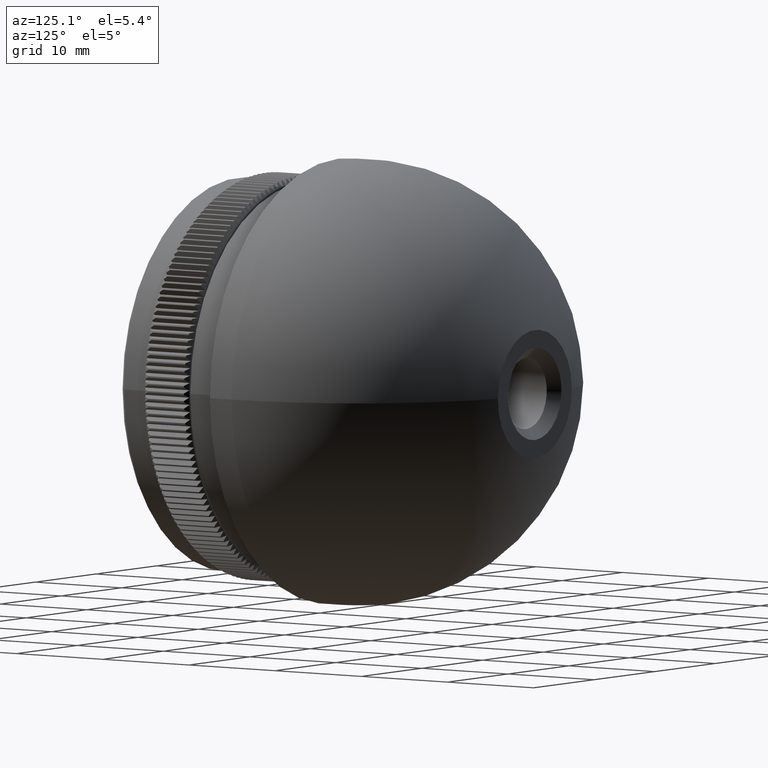
[diagram: clean part render]
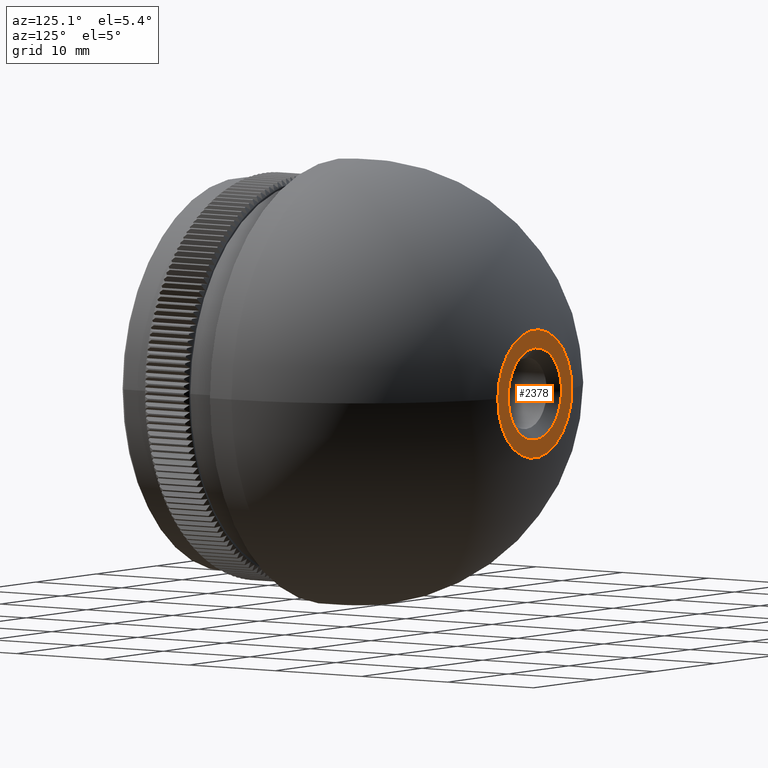
[diagram: same view with one face highlighted and labeled with its STEP entity id]
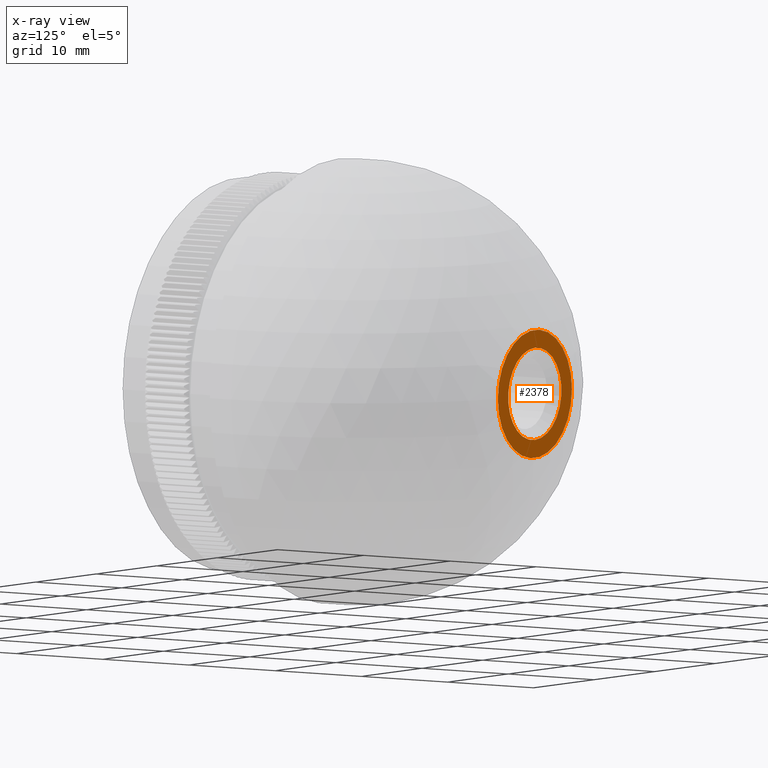
[diagram: x-ray of the same camera — body ghosted, the highlighted face saturated]
A machine part, auxiliary view. The second image highlights one B-rep face of the part: STEP entity #2378.
The next image is the same camera in x-ray: the body ghosted, the highlighted face saturated — about 0% of this face is hidden behind the body in this view.
In plain terms, the highlighted planar face has unit normal (-0, -1, 0).
Its self-contained STEP definition (entity closure, byte-faithful):
#241 = CARTESIAN_POINT ( 'NONE',  ( 4.860897535692489600E-014, 35.00000000000002800, 0.0000000000000000000 ) ) ;
#1147 = ORIENTED_EDGE ( 'NONE', *, *, #3107, .T. ) ;
#2378 = ADVANCED_FACE ( 'NONE', ( #14525, #29268 ), #11956, .F. ) ;
#2974 = AXIS2_PLACEMENT_3D ( 'NONE', #36735, #25140, #13390 ) ;
#3107 = EDGE_CURVE ( 'NONE', #14770, #9695, #3404, .T. ) ;
#3404 = CIRCLE ( 'NONE', #5056, 6.111464636238886200 ) ;
#3964 = CIRCLE ( 'NONE', #30517, 4.399999999999999500 ) ;
#5056 = AXIS2_PLACEMENT_3D ( 'NONE', #14489, #37811, #5172 ) ;
#5172 = DIRECTION ( 'NONE',  ( 1.000000000000000000, -1.135389684293020400E-015, 0.0000000000000000000 ) ) ;
#6264 = EDGE_LOOP ( 'NONE', ( #1147, #30417 ) ) ;
#7587 = DIRECTION ( 'NONE',  ( 1.000000000000000000, -1.577021341797097600E-015, 0.0000000000000000000 ) ) ;
#7721 = ORIENTED_EDGE ( 'NONE', *, *, #19045, .T. ) ;
#9695 = VERTEX_POINT ( 'NONE', #31110 ) ;
#10380 = EDGE_CURVE ( 'NONE', #9695, #14770, #32889, .T. ) ;
#10665 = DIRECTION ( 'NONE',  ( -1.388827867340710000E-015, -1.000000000000000000, 0.0000000000000000000 ) ) ;
#11078 = DIRECTION ( 'NONE',  ( 1.388827867340710000E-015, 1.000000000000000000, -0.0000000000000000000 ) ) ;
#11956 = PLANE ( 'NONE',  #12156 ) ;
#12156 = AXIS2_PLACEMENT_3D ( 'NONE', #241, #21014, #12210 ) ;
#12210 = DIRECTION ( 'NONE',  ( 1.000000000000000000, -1.388827867340710000E-015, 0.0000000000000000000 ) ) ;
#13390 = DIRECTION ( 'NONE',  ( 1.000000000000000000, -1.577021341797097600E-015, 0.0000000000000000000 ) ) ;
#13876 = CARTESIAN_POINT ( 'NONE',  ( 6.111464636238912000, 35.00000000000002100, 0.0000000000000000000 ) ) ;
#14489 = CARTESIAN_POINT ( 'NONE',  ( 2.639297491226985000E-014, 35.00000000000002800, 0.0000000000000000000 ) ) ;
#14525 = FACE_BOUND ( 'NONE', #33600, .T. ) ;
#14770 = VERTEX_POINT ( 'NONE', #13876 ) ;
#15209 = CARTESIAN_POINT ( 'NONE',  ( 4.914781994854972700E-014, 35.00000000000002800, -4.399999999999999500 ) ) ;
#15709 = EDGE_CURVE ( 'NONE', #31759, #21640, #3964, .T. ) ;
#16753 = CARTESIAN_POINT ( 'NONE',  ( 2.639297491226985000E-014, 35.00000000000002800, 0.0000000000000000000 ) ) ;
#19045 = EDGE_CURVE ( 'NONE', #21640, #31759, #19966, .T. ) ;
#19853 = CARTESIAN_POINT ( 'NONE',  ( 4.860897535692489600E-014, 35.00000000000002800, 4.399999999999999500 ) ) ;
#19966 = CIRCLE ( 'NONE', #2974, 4.399999999999999500 ) ;
#21014 = DIRECTION ( 'NONE',  ( -1.388827867340710000E-015, -1.000000000000000000, 0.0000000000000000000 ) ) ;
#21640 = VERTEX_POINT ( 'NONE', #15209 ) ;
#22441 = CARTESIAN_POINT ( 'NONE',  ( 4.860897535692489600E-014, 35.00000000000002800, 0.0000000000000000000 ) ) ;
#22836 = DIRECTION ( 'NONE',  ( 1.000000000000000000, -1.135389684293020400E-015, 0.0000000000000000000 ) ) ;
#25140 = DIRECTION ( 'NONE',  ( -1.388827867340710000E-015, -1.000000000000000000, 0.0000000000000000000 ) ) ;
#29268 = FACE_OUTER_BOUND ( 'NONE', #6264, .T. ) ;
#30417 = ORIENTED_EDGE ( 'NONE', *, *, #10380, .T. ) ;
#30517 = AXIS2_PLACEMENT_3D ( 'NONE', #22441, #10665, #7587 ) ;
#31110 = CARTESIAN_POINT ( 'NONE',  ( -6.111464636238860500, 35.00000000000003600, 1.672344887339804200E-015 ) ) ;
#31759 = VERTEX_POINT ( 'NONE', #19853 ) ;
#32889 = CIRCLE ( 'NONE', #35124, 6.111464636238886200 ) ;
#32916 = ORIENTED_EDGE ( 'NONE', *, *, #15709, .T. ) ;
#33600 = EDGE_LOOP ( 'NONE', ( #32916, #7721 ) ) ;
#35124 = AXIS2_PLACEMENT_3D ( 'NONE', #16753, #11078, #22836 ) ;
#36735 = CARTESIAN_POINT ( 'NONE',  ( 4.860897535692489600E-014, 35.00000000000002800, 0.0000000000000000000 ) ) ;
#37811 = DIRECTION ( 'NONE',  ( 1.388827867340710000E-015, 1.000000000000000000, -0.0000000000000000000 ) ) ;